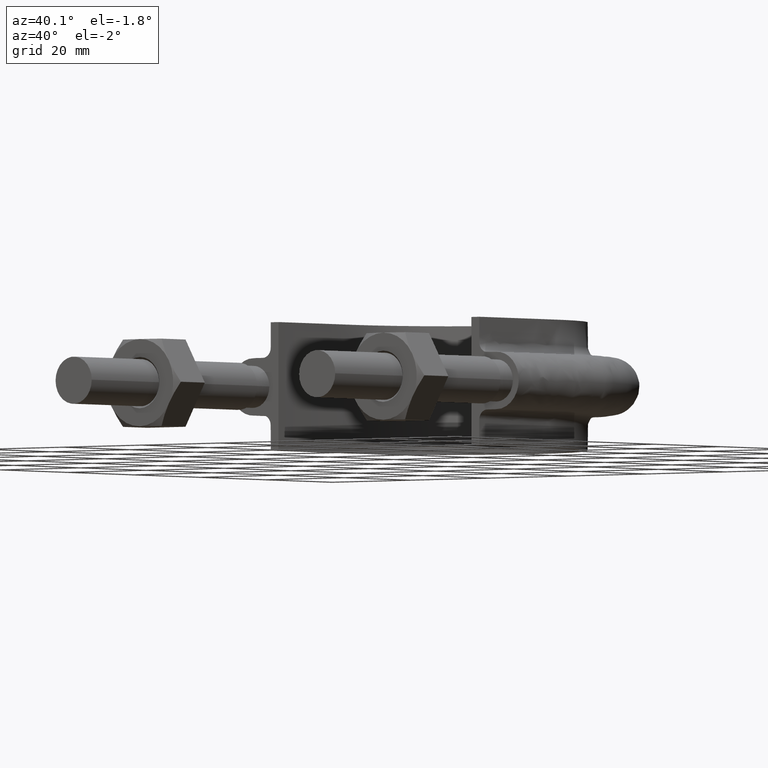
[diagram: clean part render]
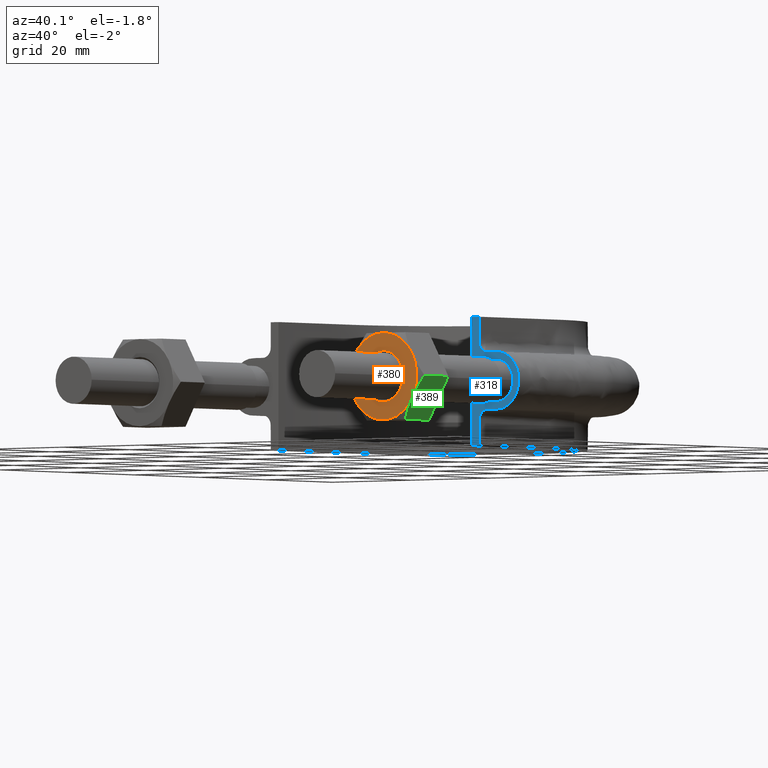
[diagram: same view with three faces highlighted in distinct colors, each labeled with its STEP entity id]
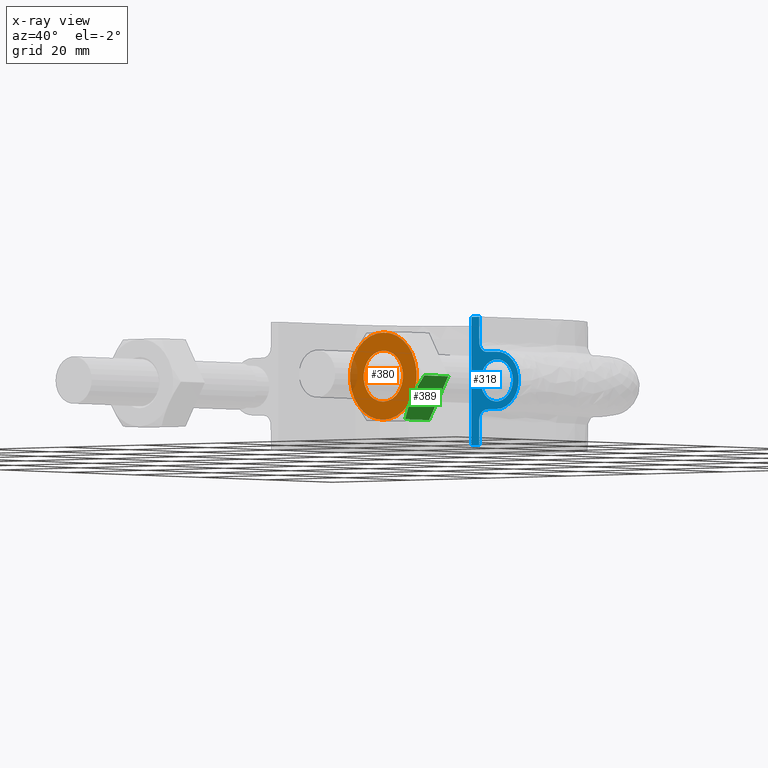
[diagram: x-ray of the same camera — body ghosted, the three highlighted faces saturated]
A machine part, auxiliary view with three faces highlighted in distinct colors.
The next image is the same camera in x-ray (body ghosted, the three faces saturated) — at least one of them is partly hidden behind the body in this view.
Their STEP definitions:

[orange] entity #380 — the highlighted planar face has unit normal (0, 1, 0).
#380 = ADVANCED_FACE( '', ( #539, #540 ), #541, .F. );
#539 = FACE_OUTER_BOUND( '', #1538, .T. );
#540 = FACE_BOUND( '', #1539, .T. );
#541 = PLANE( '', #1540 );
#1538 = EDGE_LOOP( '', ( #2017, #2018, #2019, #2020, #2021, #2022 ) );
#1539 = EDGE_LOOP( '', ( #2023 ) );
#1540 = AXIS2_PLACEMENT_3D( '', #2024, #2025, #2026 );
#2017 = ORIENTED_EDGE( '', *, *, #2245, .F. );
#2018 = ORIENTED_EDGE( '', *, *, #2249, .F. );
#2019 = ORIENTED_EDGE( '', *, *, #2227, .F. );
#2020 = ORIENTED_EDGE( '', *, *, #2243, .F. );
#2021 = ORIENTED_EDGE( '', *, *, #2213, .F. );
#2022 = ORIENTED_EDGE( '', *, *, #2250, .F. );
#2023 = ORIENTED_EDGE( '', *, *, #2251, .T. );
#2024 = CARTESIAN_POINT( '', ( 31.0000000000000, 19.9999999999973, 6.14796841907905E-015 ) );
#2025 = DIRECTION( '', ( 7.49830360911067E-032, 1.00000000000000, 3.06151588455594E-016 ) );
#2026 = DIRECTION( '', ( 1.00000000000000, -1.09476442525376E-047, -2.44921270764475E-016 ) );
#2213 = EDGE_CURVE( '', #2430, #2432, #2433, .T. );
#2227 = EDGE_CURVE( '', #2450, #2457, #2458, .T. );
#2243 = EDGE_CURVE( '', #2432, #2450, #2485, .T. );
#2245 = EDGE_CURVE( '', #2487, #2488, #2489, .T. );
#2249 = EDGE_CURVE( '', #2457, #2487, #2495, .T. );
#2250 = EDGE_CURVE( '', #2488, #2430, #2496, .T. );
#2251 = EDGE_CURVE( '', #2497, #2497, #2498, .T. );
#2430 = VERTEX_POINT( '', #2998 );
#2432 = VERTEX_POINT( '', #3005 );
#2433 = CIRCLE( '', #3006, 8.50000000000000 );
#2450 = VERTEX_POINT( '', #3038 );
#2457 = VERTEX_POINT( '', #3057 );
#2458 = CIRCLE( '', #3058, 8.50000000000000 );
#2485 = CIRCLE( '', #3096, 8.50000000000000 );
#2487 = VERTEX_POINT( '', #3098 );
#2488 = VERTEX_POINT( '', #3099 );
#2489 = CIRCLE( '', #3100, 8.50000000000000 );
#2495 = CIRCLE( '', #3116, 8.50000000000000 );
#2496 = CIRCLE( '', #3117, 8.50000000000000 );
#2497 = VERTEX_POINT( '', #3118 );
#2498 = CIRCLE( '', #3119, 5.00000000000000 );
#2998 = CARTESIAN_POINT( '', ( 38.3612159321665, 19.9999999999973, -4.25000000000214 ) );
#3005 = CARTESIAN_POINT( '', ( 30.9999999999987, 19.9999999999973, -8.50000000000071 ) );
#3006 = AXIS2_PLACEMENT_3D( '', #3312, #3313, #3314 );
#3038 = CARTESIAN_POINT( '', ( 23.6387840678310, 19.9999999999973, -4.24999999999785 ) );
#3057 = CARTESIAN_POINT( '', ( 23.6387840678335, 19.9999999999973, 4.25000000000214 ) );
#3058 = AXIS2_PLACEMENT_3D( '', #3328, #3329, #3330 );
#3096 = AXIS2_PLACEMENT_3D( '', #3361, #3362, #3363 );
#3098 = CARTESIAN_POINT( '', ( 31.0000000000025, 19.9999999999973, 8.50000000000001 ) );
#3099 = CARTESIAN_POINT( '', ( 38.3612159321690, 19.9999999999973, 4.24999999999786 ) );
#3100 = AXIS2_PLACEMENT_3D( '', #3367, #3368, #3369 );
#3116 = AXIS2_PLACEMENT_3D( '', #3373, #3374, #3375 );
#3117 = AXIS2_PLACEMENT_3D( '', #3376, #3377, #3378 );
#3118 = CARTESIAN_POINT( '', ( 31.0000000000000, 19.9999999999973, 5.00000000000001 ) );
#3119 = AXIS2_PLACEMENT_3D( '', #3379, #3380, #3381 );
#3312 = CARTESIAN_POINT( '', ( 31.0000000000000, 19.9999999999973, 6.14796841907905E-015 ) );
#3313 = DIRECTION( '', ( 7.49830360911067E-032, 1.00000000000000, 3.06151588455594E-016 ) );
#3314 = DIRECTION( '', ( 0.000000000000000, -3.06151588455594E-016, 1.00000000000000 ) );
#3328 = CARTESIAN_POINT( '', ( 31.0000000000000, 19.9999999999973, 6.14796841907905E-015 ) );
#3329 = DIRECTION( '', ( 7.49830360911067E-032, 1.00000000000000, 3.06151588455594E-016 ) );
#3330 = DIRECTION( '', ( 0.000000000000000, -3.06151588455594E-016, 1.00000000000000 ) );
#3361 = CARTESIAN_POINT( '', ( 31.0000000000000, 19.9999999999973, 6.14796841907905E-015 ) );
#3362 = DIRECTION( '', ( 7.49830360911067E-032, 1.00000000000000, 3.06151588455594E-016 ) );
#3363 = DIRECTION( '', ( 0.000000000000000, -3.06151588455594E-016, 1.00000000000000 ) );
#3367 = CARTESIAN_POINT( '', ( 31.0000000000000, 19.9999999999973, 6.14796841907905E-015 ) );
#3368 = DIRECTION( '', ( 7.49830360911067E-032, 1.00000000000000, 3.06151588455594E-016 ) );
#3369 = DIRECTION( '', ( 0.000000000000000, -3.06151588455594E-016, 1.00000000000000 ) );
#3373 = CARTESIAN_POINT( '', ( 31.0000000000000, 19.9999999999973, 6.14796841907905E-015 ) );
#3374 = DIRECTION( '', ( 7.49830360911067E-032, 1.00000000000000, 3.06151588455594E-016 ) );
#3375 = DIRECTION( '', ( 0.000000000000000, -3.06151588455594E-016, 1.00000000000000 ) );
#3376 = CARTESIAN_POINT( '', ( 31.0000000000000, 19.9999999999973, 6.14796841907905E-015 ) );
#3377 = DIRECTION( '', ( 7.49830360911067E-032, 1.00000000000000, 3.06151588455594E-016 ) );
#3378 = DIRECTION( '', ( 0.000000000000000, -3.06151588455594E-016, 1.00000000000000 ) );
#3379 = CARTESIAN_POINT( '', ( 31.0000000000000, 19.9999999999973, 6.14796841907905E-015 ) );
#3380 = DIRECTION( '', ( 7.49830360911067E-032, 1.00000000000000, 3.06151588455594E-016 ) );
#3381 = DIRECTION( '', ( 0.000000000000000, -3.06151588455594E-016, 1.00000000000000 ) );

[blue] entity #318 — the highlighted planar face has unit normal (0, 1, 0).
#318 = ADVANCED_FACE( '', ( #401, #402 ), #403, .F. );
#401 = FACE_OUTER_BOUND( '', #576, .T. );
#402 = FACE_BOUND( '', #577, .T. );
#403 = PLANE( '', #578 );
#576 = EDGE_LOOP( '', ( #1604, #1605, #1606, #1607 ) );
#577 = EDGE_LOOP( '', ( #1608 ) );
#578 = AXIS2_PLACEMENT_3D( '', #1609, #1610, #1611 );
#1604 = ORIENTED_EDGE( '', *, *, #2119, .F. );
#1605 = ORIENTED_EDGE( '', *, *, #2117, .T. );
#1606 = ORIENTED_EDGE( '', *, *, #2121, .T. );
#1607 = ORIENTED_EDGE( '', *, *, #2122, .T. );
#1608 = ORIENTED_EDGE( '', *, *, #2123, .T. );
#1609 = CARTESIAN_POINT( '', ( -40.0000000000000, 54.3000000000000, 12.5000000000000 ) );
#1610 = DIRECTION( '', ( 1.83649404852125E-048, 1.00000000000000, 1.49966072182214E-032 ) );
#1611 = DIRECTION( '', ( 1.00000000000000, -3.03858167864314E-064, -1.22460635382238E-016 ) );
#2117 = EDGE_CURVE( '', #2275, #2273, #2276, .T. );
#2119 = EDGE_CURVE( '', #2275, #2278, #2279, .F. );
#2121 = EDGE_CURVE( '', #2273, #2281, #2282, .T. );
#2122 = EDGE_CURVE( '', #2281, #2278, #2283, .T. );
#2123 = EDGE_CURVE( '', #2284, #2284, #2285, .T. );
#2273 = VERTEX_POINT( '', #2565 );
#2275 = VERTEX_POINT( '', #2583 );
#2276 = LINE( '', #2584, #2585 );
#2278 = VERTEX_POINT( '', #2653 );
#2279 = LINE( '', #2654, #2655 );
#2281 = VERTEX_POINT( '', #2673 );
#2282 = LINE( '', #2674, #2675 );
#2283 = B_SPLINE_CURVE_WITH_KNOTS( '', 3, ( #2676, #2677, #2678, #2679, #2680, #2681, #2682, #2683, #2684, #2685, #2686, #2687, #2688, #2689, #2690, #2691, #2692, #2693, #2694, #2695, #2696, #2697, #2698, #2699, #2700, #2701, #2702, #2703, #2704, #2705, #2706 ), .UNSPECIFIED., .F., .F., ( 4, 3, 1, 1, 1, 3, 3, 1, 1, 1, 3, 3, 1, 1, 1, 3, 4 ), ( 0.000000000000000, 0.00240476149769668, 0.00480952299539332, 0.00721428449308999, 0.00961904599078663, 0.0120238074884833, 0.0144285689861799, 0.0168333304838766, 0.0192380919815733, 0.0216428534792699, 0.0240476149769665, 0.0264523764746632, 0.0288571379723598, 0.0312618994700565, 0.0336666609677532, 0.0360714224654498, 0.0384761839631465 ), .UNSPECIFIED. );
#2284 = VERTEX_POINT( '', #2707 );
#2285 = B_SPLINE_CURVE_WITH_KNOTS( '', 3, ( #2708, #2709, #2710, #2711, #2712, #2713, #2714, #2715, #2716, #2717 ), .UNSPECIFIED., .T., .F., ( 4, 1, 1, 1, 1, 1, 1, 4 ), ( 0.000000000000000, 0.00365634574703308, 0.00731269149406615, 0.0109690372410992, 0.0146253829881323, 0.0182817287351654, 0.0219380744821984, 0.0255944202292315 ), .UNSPECIFIED. );
#2565 = CARTESIAN_POINT( '', ( 24.5500000000000, 54.3000000000000, -12.5000000000000 ) );
#2583 = CARTESIAN_POINT( '', ( 24.5500000000000, 54.3000000000000, 12.5000000000000 ) );
#2584 = CARTESIAN_POINT( '', ( 24.5500000000000, 54.3000000000000, 12.5000100000910 ) );
#2585 = VECTOR( '', #3162, 1000.00000000000 );
#2653 = CARTESIAN_POINT( '', ( 26.5500000000000, 54.3000000000000, 12.5000000000000 ) );
#2654 = CARTESIAN_POINT( '', ( 40.0000000000000, 54.3000000000000, 12.5000000000000 ) );
#2655 = VECTOR( '', #3163, 1000.00000000000 );
#2673 = CARTESIAN_POINT( '', ( 26.5500000000000, 54.3000000000000, -12.5000000000000 ) );
#2674 = CARTESIAN_POINT( '', ( -40.0000000000000, 54.3000000000000, -12.5000000000000 ) );
#2675 = VECTOR( '', #3164, 1000.00000000000 );
#2676 = CARTESIAN_POINT( '', ( 26.5500000000000, 54.3000000000000, -12.5000000000000 ) );
#2677 = CARTESIAN_POINT( '', ( 26.5500000000000, 54.3000000000000, -10.8666666666666 ) );
#2678 = CARTESIAN_POINT( '', ( 26.5500000000000, 54.3000000000000, -9.23333333333331 ) );
#2679 = CARTESIAN_POINT( '', ( 26.5500000000000, 54.3000000000000, -7.59999999999998 ) );
#2680 = CARTESIAN_POINT( '', ( 26.5500000000000, 54.3000000000000, -7.33823584172332 ) );
#2681 = CARTESIAN_POINT( '', ( 26.6541362568359, 54.3000000000000, -6.81470752516999 ) );
#2682 = CARTESIAN_POINT( '', ( 27.0989687109389, 54.3000000000000, -6.14896871093886 ) );
#2683 = CARTESIAN_POINT( '', ( 27.7647075251700, 54.3000000000000, -5.70413625683589 ) );
#2684 = CARTESIAN_POINT( '', ( 28.2882358417234, 54.3000000000000, -5.59999999999999 ) );
#2685 = CARTESIAN_POINT( '', ( 28.5500000000000, 54.3000000000000, -5.59999999999999 ) );
#2686 = CARTESIAN_POINT( '', ( 29.3666666666667, 54.3000000000000, -5.59999999999999 ) );
#2687 = CARTESIAN_POINT( '', ( 30.1833333333334, 54.3000000000000, -5.59999999999999 ) );
#2688 = CARTESIAN_POINT( '', ( 31.0000000000000, 54.3000000000000, -5.59999999999999 ) );
#2689 = CARTESIAN_POINT( '', ( 32.4627416997970, 54.3000000000000, -5.59999999999999 ) );
#2690 = CARTESIAN_POINT( '', ( 35.3882250993909, 54.3000000000000, -4.38822509939085 ) );
#2691 = CARTESIAN_POINT( '', ( 37.2058874503046, 54.3000000000000, 9.94452457394278E-015 ) );
#2692 = CARTESIAN_POINT( '', ( 35.3882250993909, 54.3000000000000, 4.38822509939087 ) );
#2693 = CARTESIAN_POINT( '', ( 32.4627416997970, 54.3000000000000, 5.60000000000001 ) );
#2694 = CARTESIAN_POINT( '', ( 31.0000000000000, 54.3000000000000, 5.60000000000001 ) );
#2695 = CARTESIAN_POINT( '', ( 30.1833333333333, 54.3000000000000, 5.60000000000001 ) );
#2696 = CARTESIAN_POINT( '', ( 29.3666666666667, 54.3000000000000, 5.60000000000001 ) );
#2697 = CARTESIAN_POINT( '', ( 28.5500000000000, 54.3000000000000, 5.59999999999999 ) );
#2698 = CARTESIAN_POINT( '', ( 28.2882358417233, 54.3000000000000, 5.59999999999999 ) );
#2699 = CARTESIAN_POINT( '', ( 27.7647075251700, 54.3000000000000, 5.70413625683590 ) );
#2700 = CARTESIAN_POINT( '', ( 27.0989687109389, 54.3000000000000, 6.14896871093887 ) );
#2701 = CARTESIAN_POINT( '', ( 26.6541362568359, 54.3000000000000, 6.81470752517000 ) );
#2702 = CARTESIAN_POINT( '', ( 26.5500000000000, 54.3000000000000, 7.33823584172332 ) );
#2703 = CARTESIAN_POINT( '', ( 26.5500000000000, 54.3000000000000, 7.59999999999999 ) );
#2704 = CARTESIAN_POINT( '', ( 26.5500000000000, 54.3000000000000, 9.23333333333333 ) );
#2705 = CARTESIAN_POINT( '', ( 26.5500000000000, 54.3000000000000, 10.8666666666667 ) );
#2706 = CARTESIAN_POINT( '', ( 26.5500000000000, 54.3000000000000, 12.5000000000000 ) );
#2707 = CARTESIAN_POINT( '', ( 26.9000000000000, 54.3000000000000, 1.40561392536007E-063 ) );
#2708 = CARTESIAN_POINT( '', ( 26.9000000000000, 54.3000000000000, 0.000000000000000 ) );
#2709 = CARTESIAN_POINT( '', ( 26.9000000000000, 54.3000000000000, 1.22184926194408 ) );
#2710 = CARTESIAN_POINT( '', ( 28.0768231851220, 54.3000000000000, 3.66554778583225 ) );
#2711 = CARTESIAN_POINT( '', ( 32.0432697263483, 54.3000000000000, 4.57086332538453 ) );
#2712 = CARTESIAN_POINT( '', ( 35.2241128848103, 54.3000000000000, 2.03422555230246 ) );
#2713 = CARTESIAN_POINT( '', ( 35.2241128848103, 54.3000000000000, -2.03422555230246 ) );
#2714 = CARTESIAN_POINT( '', ( 32.0432697263483, 54.3000000000000, -4.57086332538454 ) );
#2715 = CARTESIAN_POINT( '', ( 28.0768231851220, 54.3000000000000, -3.66554778583225 ) );
#2716 = CARTESIAN_POINT( '', ( 26.9000000000000, 54.3000000000000, -1.22184926194408 ) );
#2717 = CARTESIAN_POINT( '', ( 26.9000000000000, 54.3000000000000, 0.000000000000000 ) );
#3162 = DIRECTION( '', ( 0.000000000000000, 0.000000000000000, -1.00000000000000 ) );
#3163 = DIRECTION( '', ( -1.00000000000000, 1.83649404852125E-048, 0.000000000000000 ) );
#3164 = DIRECTION( '', ( 1.00000000000000, -1.83649404852125E-048, 0.000000000000000 ) );

[green] entity #389 — the highlighted planar face has unit normal (-0.866, 0, 0.5).
#389 = ADVANCED_FACE( '', ( #559 ), #560, .F. );
#559 = FACE_OUTER_BOUND( '', #1558, .T. );
#560 = PLANE( '', #1559 );
#1558 = EDGE_LOOP( '', ( #2083, #2084, #2085, #2086, #2087 ) );
#1559 = AXIS2_PLACEMENT_3D( '', #2088, #2089, #2090 );
#2083 = ORIENTED_EDGE( '', *, *, #2255, .F. );
#2084 = ORIENTED_EDGE( '', *, *, #2212, .F. );
#2085 = ORIENTED_EDGE( '', *, *, #2256, .F. );
#2086 = ORIENTED_EDGE( '', *, *, #2232, .F. );
#2087 = ORIENTED_EDGE( '', *, *, #2241, .F. );
#2088 = CARTESIAN_POINT( '', ( 40.8149545762237, 27.9999999999973, -2.84589029859311E-012 ) );
#2089 = DIRECTION( '', ( -0.866025403784293, 5.90322481812929E-017, 0.500000000000252 ) );
#2090 = DIRECTION( '', ( 6.81645687566880E-017, 1.00000000000000, -6.16297582204226E-033 ) );
#2212 = EDGE_CURVE( '', #2427, #2430, #2431, .T. );
#2232 = EDGE_CURVE( '', #2465, #2467, #2468, .T. );
#2241 = EDGE_CURVE( '', #2481, #2465, #2483, .F. );
#2255 = EDGE_CURVE( '', #2430, #2481, #2503, .T. );
#2256 = EDGE_CURVE( '', #2467, #2427, #2504, .T. );
#2427 = VERTEX_POINT( '', #2995 );
#2430 = VERTEX_POINT( '', #2998 );
#2431 = B_SPLINE_CURVE_WITH_KNOTS( '', 3, ( #2999, #3000, #3001, #3002, #3003, #3004 ), .UNSPECIFIED., .F., .F., ( 4, 2, 4 ), ( 5.48841944793140E-017, 0.00246745482903609, 0.00493490965807212 ), .UNSPECIFIED. );
#2465 = VERTEX_POINT( '', #3070 );
#2467 = VERTEX_POINT( '', #3072 );
#2468 = LINE( '', #3073, #3074 );
#2481 = VERTEX_POINT( '', #3090 );
#2483 = LINE( '', #3092, #3093 );
#2503 = B_SPLINE_CURVE_WITH_KNOTS( '', 3, ( #3130, #3131, #3132, #3133, #3134, #3135 ), .UNSPECIFIED., .F., .F., ( 4, 2, 4 ), ( 1.73472347597681E-018, 0.00246745482903600, 0.00493490965807199 ), .UNSPECIFIED. );
#2504 = LINE( '', #3136, #3137 );
#2995 = CARTESIAN_POINT( '', ( 35.9224662525139, 20.7505553499438, -8.47403835210003 ) );
#2998 = CARTESIAN_POINT( '', ( 38.3612159321665, 19.9999999999973, -4.25000000000214 ) );
#2999 = CARTESIAN_POINT( '', ( 35.9224662525139, 20.7505553499438, -8.47403835210007 ) );
#3000 = CARTESIAN_POINT( '', ( 36.3209300788269, 20.5215585493630, -7.78387875994809 ) );
#3001 = CARTESIAN_POINT( '', ( 36.7224943443343, 20.3328582843680, -7.08834904958563 ) );
#3002 = CARTESIAN_POINT( '', ( 37.5345628083233, 20.0716504305264, -5.68180521073320 ) );
#3003 = CARTESIAN_POINT( '', ( 37.9451329570710, 19.9999999999973, -4.97067685303160 ) );
#3004 = CARTESIAN_POINT( '', ( 38.3612159321665, 19.9999999999973, -4.25000000000216 ) );
#3070 = CARTESIAN_POINT( '', ( 40.7999656118192, 27.9999999999973, -0.0259616479043375 ) );
#3072 = CARTESIAN_POINT( '', ( 35.9224662525139, 27.9999999999973, -8.47403835209999 ) );
#3073 = CARTESIAN_POINT( '', ( 43.2612159321690, 27.9999999999973, 4.23704895708392 ) );
#3074 = VECTOR( '', #3340, 1000.00000000000 );
#3090 = CARTESIAN_POINT( '', ( 40.7999656118192, 20.7505553499438, -0.0259616479043382 ) );
#3092 = CARTESIAN_POINT( '', ( 40.7999656118192, 27.9999999999973, -0.0259616479043410 ) );
#3093 = VECTOR( '', #3359, 1000.00000000000 );
#3130 = CARTESIAN_POINT( '', ( 38.3612159321665, 19.9999999999973, -4.25000000000215 ) );
#3131 = CARTESIAN_POINT( '', ( 38.7772989072621, 19.9999999999973, -3.52932314697271 ) );
#3132 = CARTESIAN_POINT( '', ( 39.1878690560098, 20.0716504305264, -2.81819478927112 ) );
#3133 = CARTESIAN_POINT( '', ( 39.9999375199988, 20.3328582843680, -1.41165095041872 ) );
#3134 = CARTESIAN_POINT( '', ( 40.4015017855062, 20.5215585493630, -0.716121240056213 ) );
#3135 = CARTESIAN_POINT( '', ( 40.7999656118192, 20.7505553499438, -0.0259616479042419 ) );
#3136 = CARTESIAN_POINT( '', ( 35.9224662525139, 27.9999999999973, -8.47403835209998 ) );
#3137 = VECTOR( '', #3386, 1000.00000000000 );
#3340 = DIRECTION( '', ( -0.500000000000252, 3.87595688393758E-016, -0.866025403784293 ) );
#3359 = DIRECTION( '', ( -2.44921270764476E-016, -1.00000000000000, -3.06151588455594E-016 ) );
#3386 = DIRECTION( '', ( -2.44921270764476E-016, -1.00000000000000, -3.06151588455594E-016 ) );